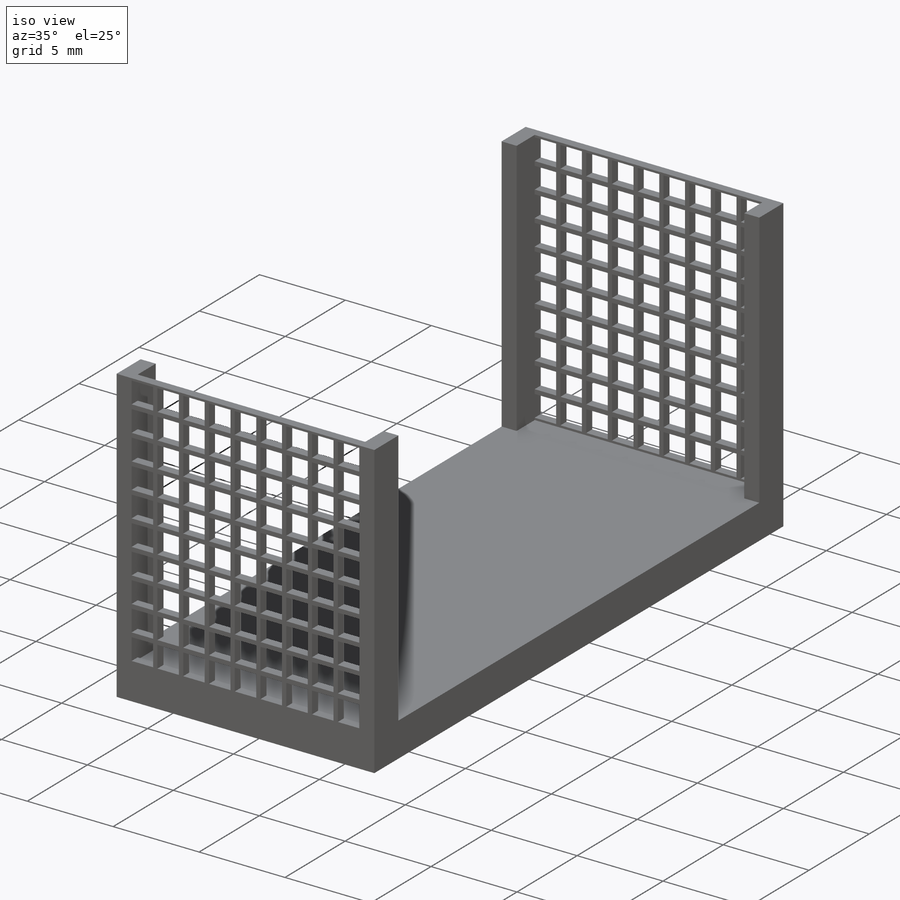
[diagram: iso view]
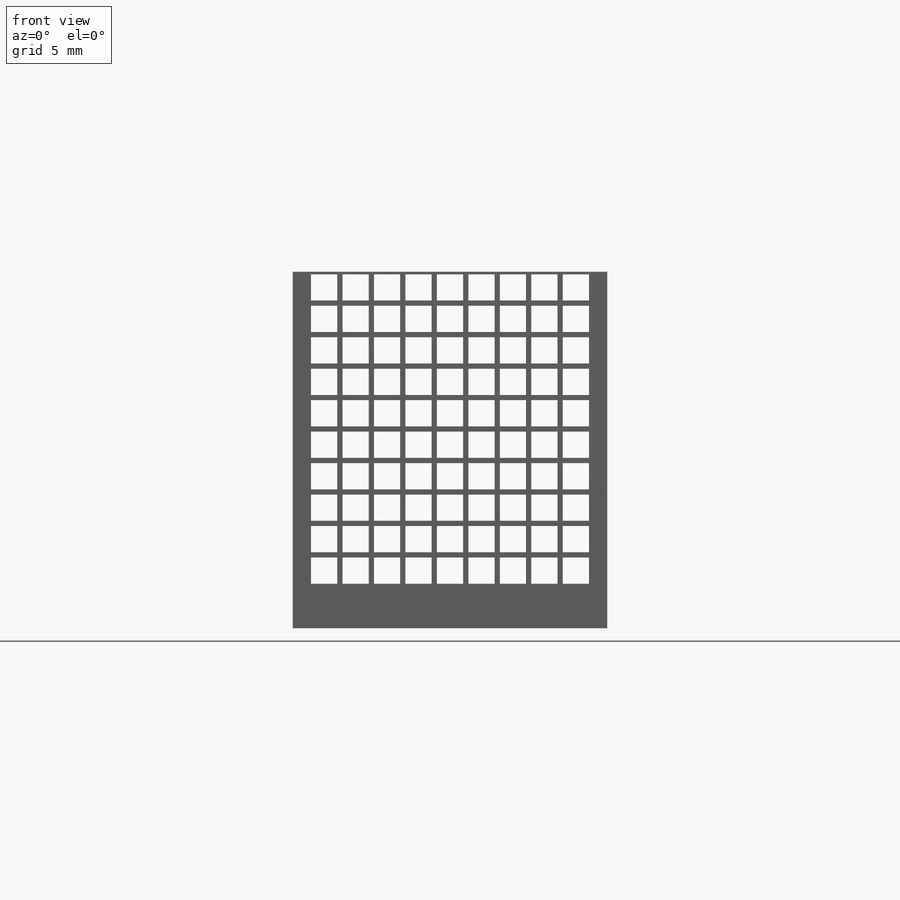
[diagram: front view]
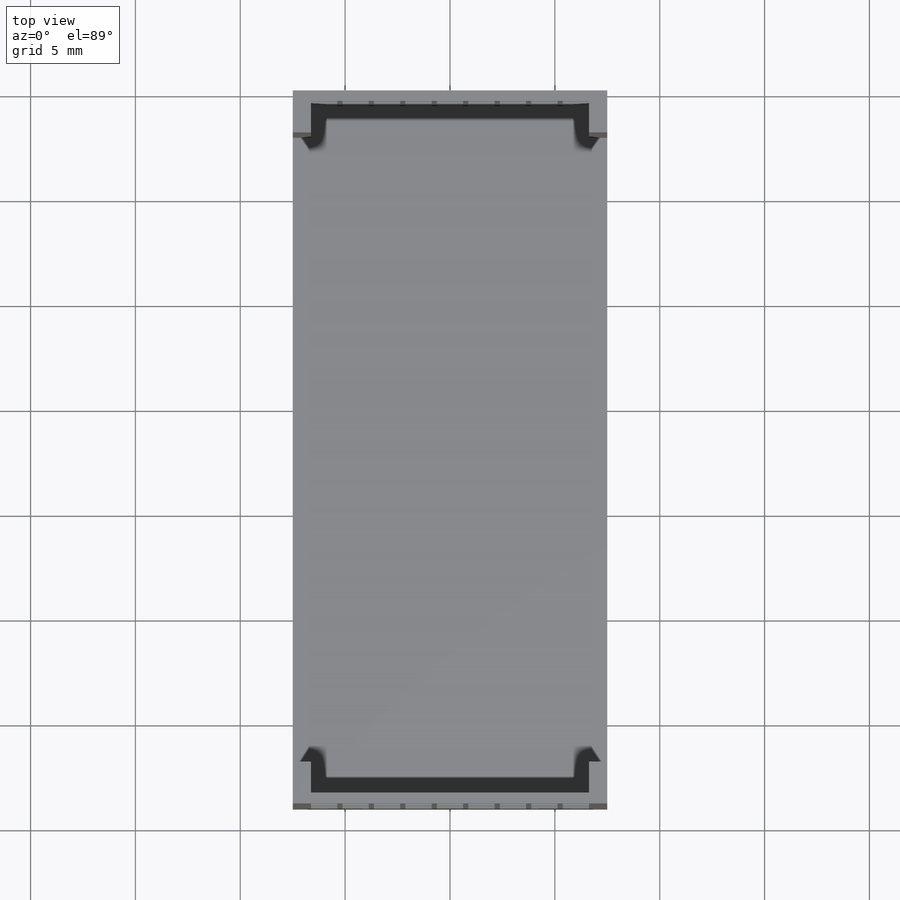
[diagram: top view]
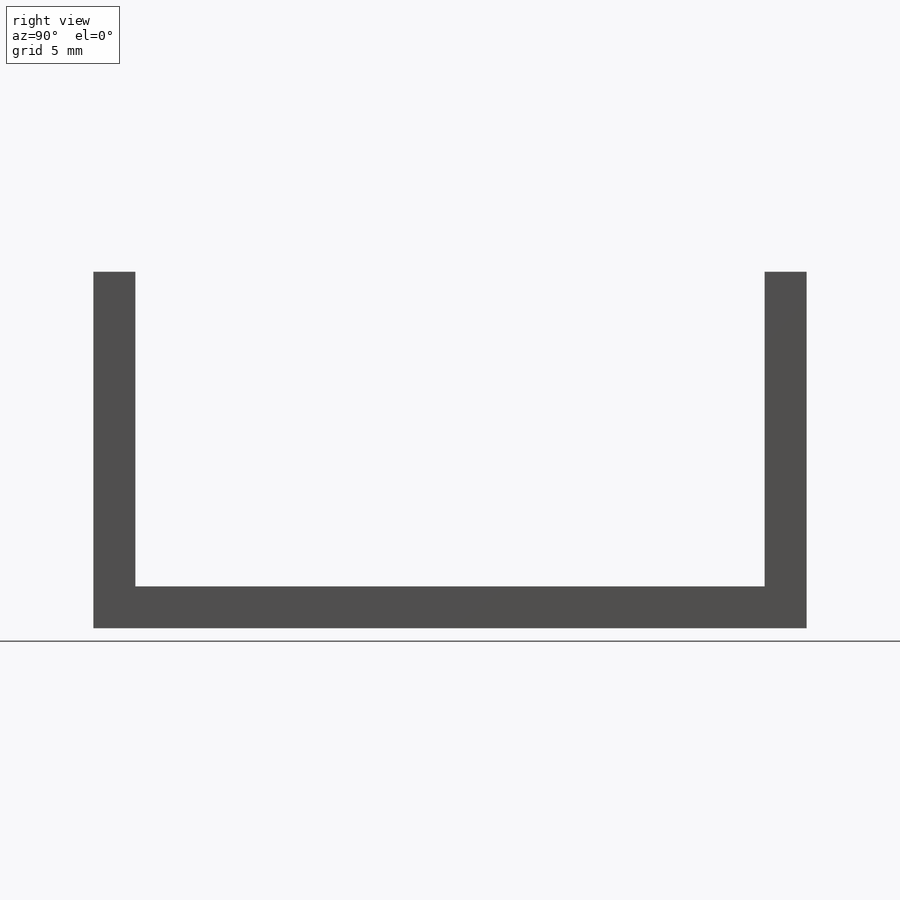
[diagram: right view]
SOLIDWORKS PART (.sldprt)
format: sldprt  version: not decoded by parser v0  size: 675,840 bytes
history: native  units: mm
features: sketch x5, cut_extrude x4, material x1, extrude x1, pattern_linear x1 (+13 scaffold rows collapsed)
feature tree (25):
  scaffold x13  (default folders/planes/origin — collapsed)
  material  "Material <not specified>"
  sketch  "Sketch1"  dims[D1=15.0mm D2=17.0mm]
  extrude  "Boss-Extrude1"  Depth=34mm
  sketch  "Sketch2"  dims[D1=2.0mm D2=2.0mm D3=2.0mm]
  cut_extrude  "Cut-Extrude1"  [1 undecoded]
  sketch  "Sketch5"  dims[D1=0.875mm D2=2.0mm]
  cut_extrude  "Cut-Extrude4"  Depth=1.5mm
  sketch  "Sketch3"  dims[D1=0.875mm D2=1.0mm D3=2.0mm]
  cut_extrude  "Cut-Extrude2"  Depth=1.5mm
  sketch  "Sketch6"  dims[D1=1.25mm D2=0.125mm]
  cut_extrude  "Cut-Extrude5"  [1 undecoded]
  pattern_linear  "LPattern1"  Count1=9 Count2=10 Spacing1=1.5mm Spacing2=1.5mm
decode coverage: 9 of 11 modeling features carry decoded parameters
note: 2 parameter values undecoded
note: suppression state not decoded; provenance and decode notes live in map.json
